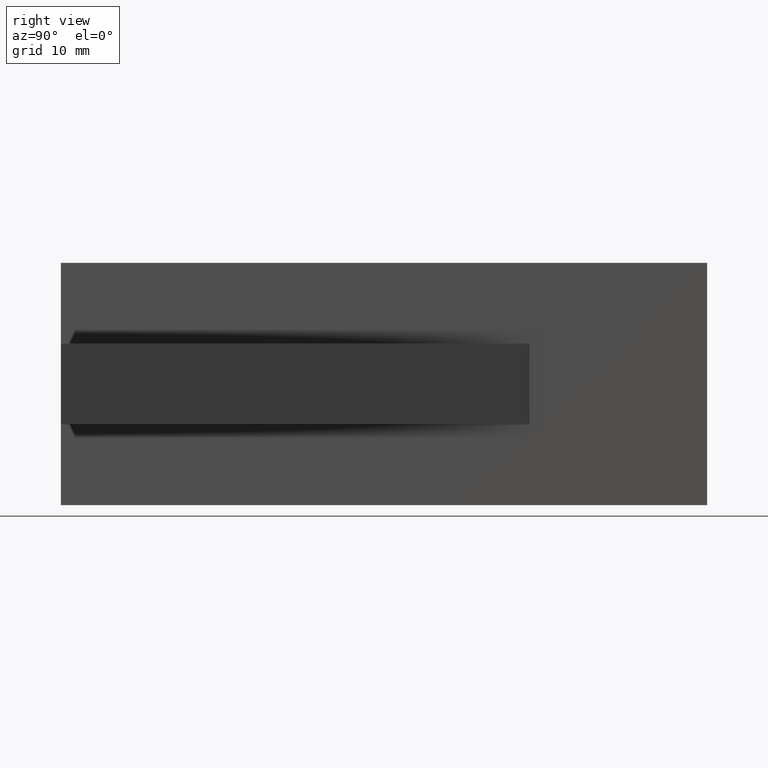
[diagram: clean part render]
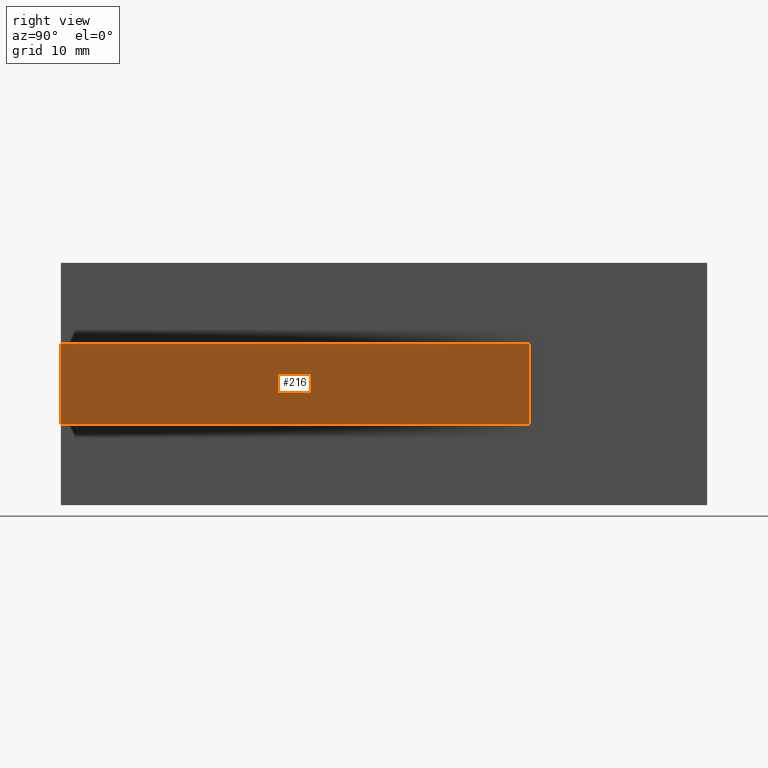
[diagram: same view with one face highlighted and labeled with its STEP entity id]
A machine part, right view. The second image highlights one B-rep face of the part: STEP entity #216.
In plain terms, the highlighted planar face has unit normal (0.9454, 0.326, 0).
Its self-contained STEP definition (entity closure, byte-faithful):
#26=FACE_OUTER_BOUND('',#39,.T.);
#39=EDGE_LOOP('',(#182,#183,#184,#185));
#49=LINE('',#324,#76);
#58=LINE('',#344,#85);
#66=LINE('',#360,#93);
#67=LINE('',#361,#94);
#76=VECTOR('',#265,10.);
#85=VECTOR('',#286,10.);
#93=VECTOR('',#300,10.);
#94=VECTOR('',#301,10.);
#100=VERTEX_POINT('',#317);
#103=VERTEX_POINT('',#322);
#108=VERTEX_POINT('',#343);
#113=VERTEX_POINT('',#359);
#121=EDGE_CURVE('',#103,#100,#49,.T.);
#130=EDGE_CURVE('',#108,#100,#58,.T.);
#138=EDGE_CURVE('',#103,#113,#66,.T.);
#139=EDGE_CURVE('',#108,#113,#67,.T.);
#182=ORIENTED_EDGE('',*,*,#138,.T.);
#183=ORIENTED_EDGE('',*,*,#139,.F.);
#184=ORIENTED_EDGE('',*,*,#130,.T.);
#185=ORIENTED_EDGE('',*,*,#121,.F.);
#204=PLANE('',#251);
#216=ADVANCED_FACE('',(#26),#204,.T.);
#251=AXIS2_PLACEMENT_3D('',#358,#298,#299);
#265=DIRECTION('',(0.,0.,-1.));
#286=DIRECTION('',(-0.325990683319404,0.945372981626272,0.));
#298=DIRECTION('center_axis',(0.945372981626272,0.325990683319404,0.));
#299=DIRECTION('ref_axis',(0.,0.,-1.));
#300=DIRECTION('',(0.325990683319404,-0.945372981626272,0.));
#301=DIRECTION('',(0.,0.,1.));
#317=CARTESIAN_POINT('',(-20.,58.,-5.));
#322=CARTESIAN_POINT('',(-20.,58.,5.));
#324=CARTESIAN_POINT('',(-20.,58.,0.));
#343=CARTESIAN_POINT('',(0.,0.,-5.));
#344=CARTESIAN_POINT('',(-20.,58.,-5.));
#358=CARTESIAN_POINT('Origin',(-20.,58.,0.));
#359=CARTESIAN_POINT('',(0.,0.,5.));
#360=CARTESIAN_POINT('',(-20.,58.,5.));
#361=CARTESIAN_POINT('',(0.,0.,0.));